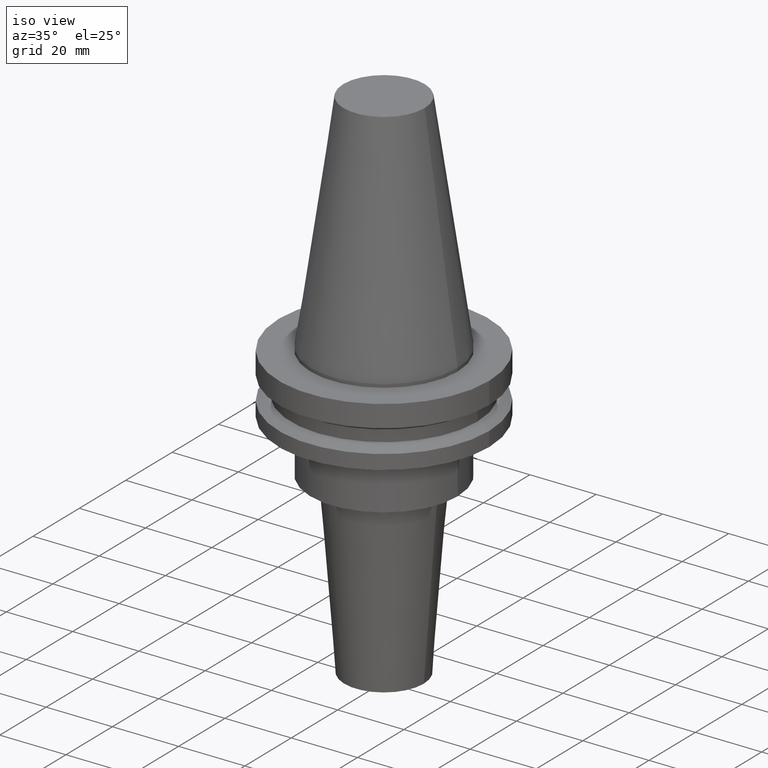
[diagram: clean part render]
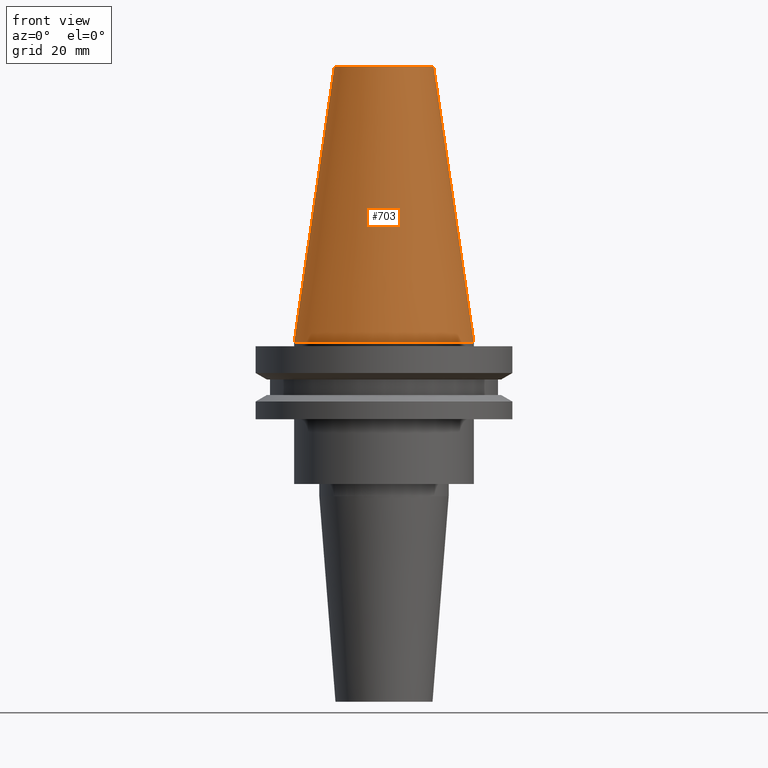
[diagram: tour spotlight — one face highlighted and labeled with its STEP entity id]
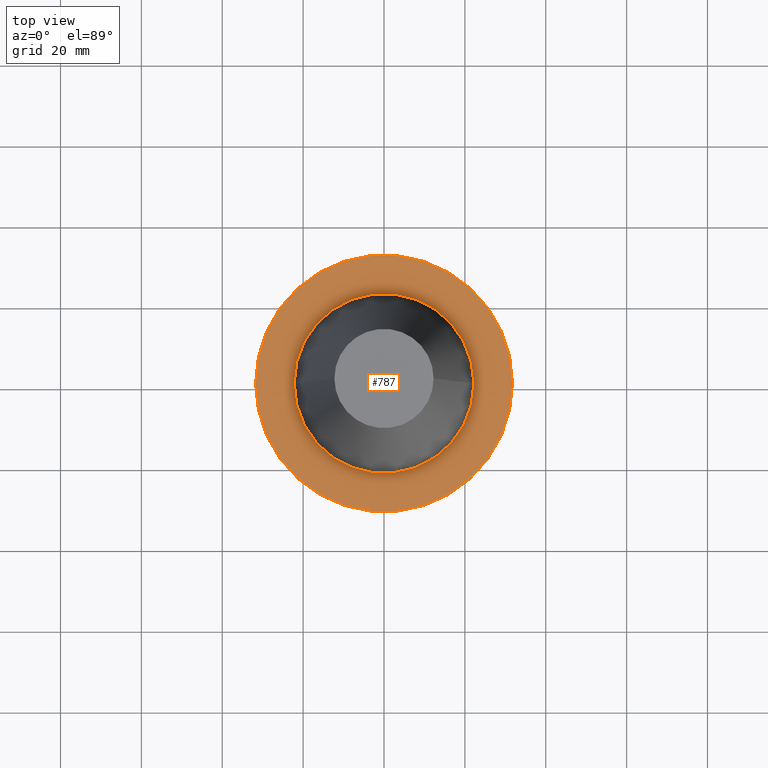
[diagram: tour spotlight — one face highlighted and labeled with its STEP entity id]
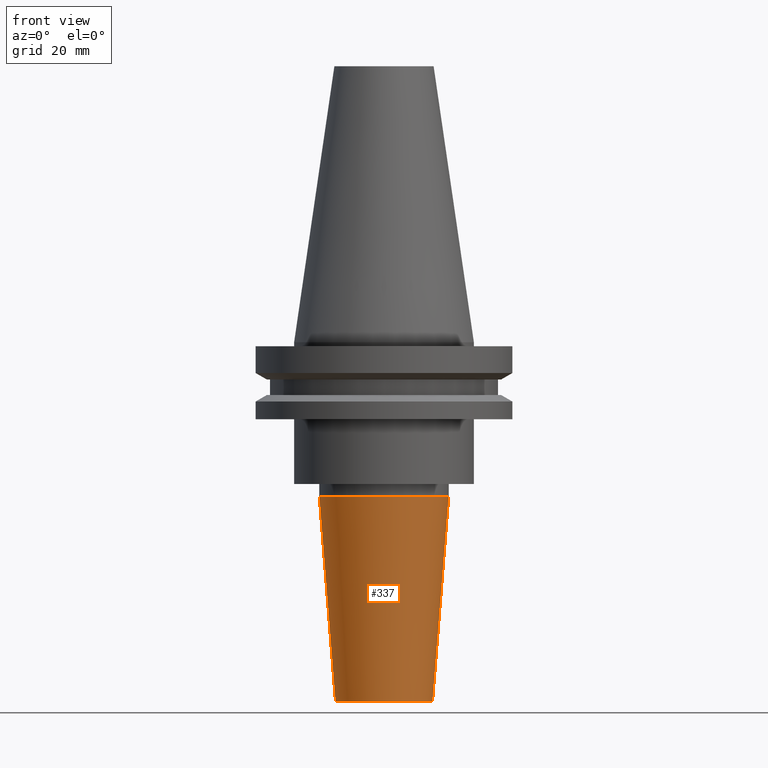
[diagram: tour spotlight — one face highlighted and labeled with its STEP entity id]
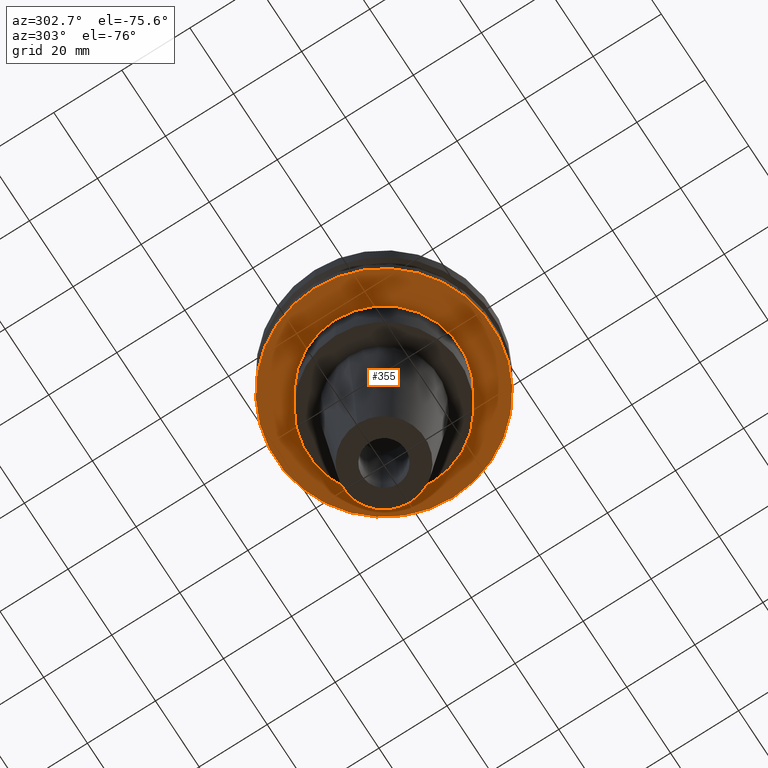
[diagram: tour spotlight — one face highlighted and labeled with its STEP entity id]
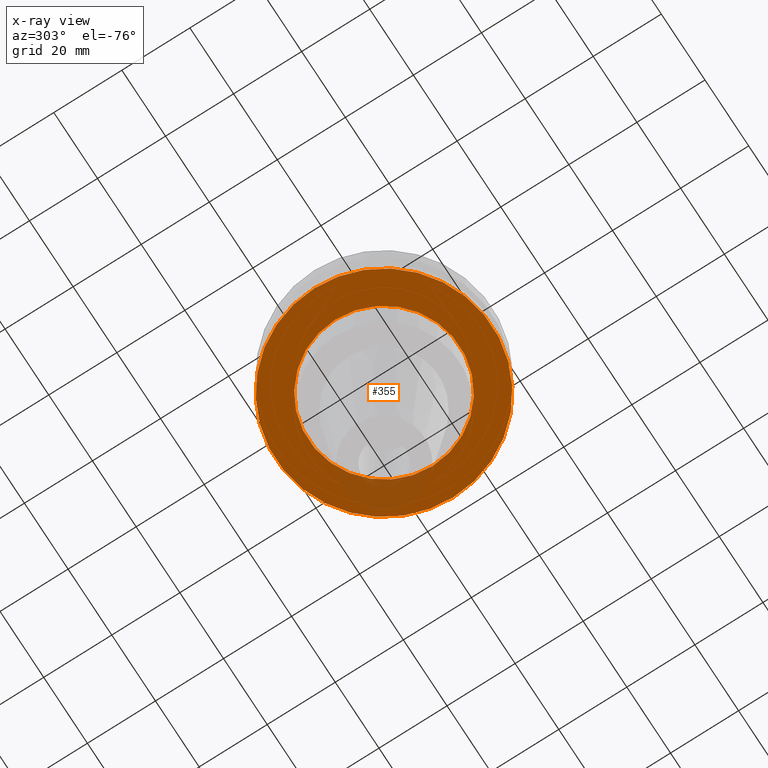
[diagram: x-ray of the same camera — body ghosted, this tour face saturated]
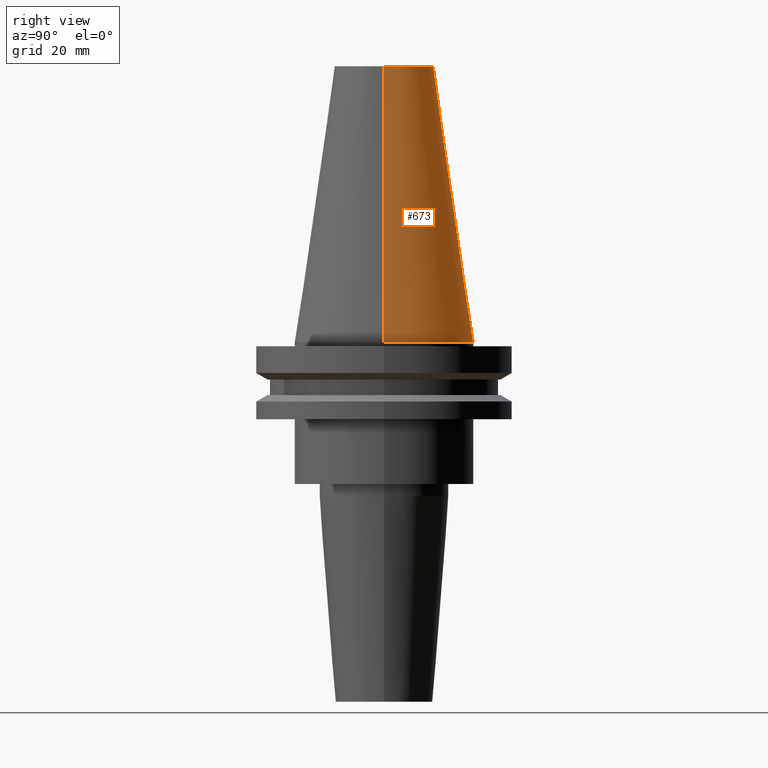
[diagram: tour spotlight — one face highlighted and labeled with its STEP entity id]
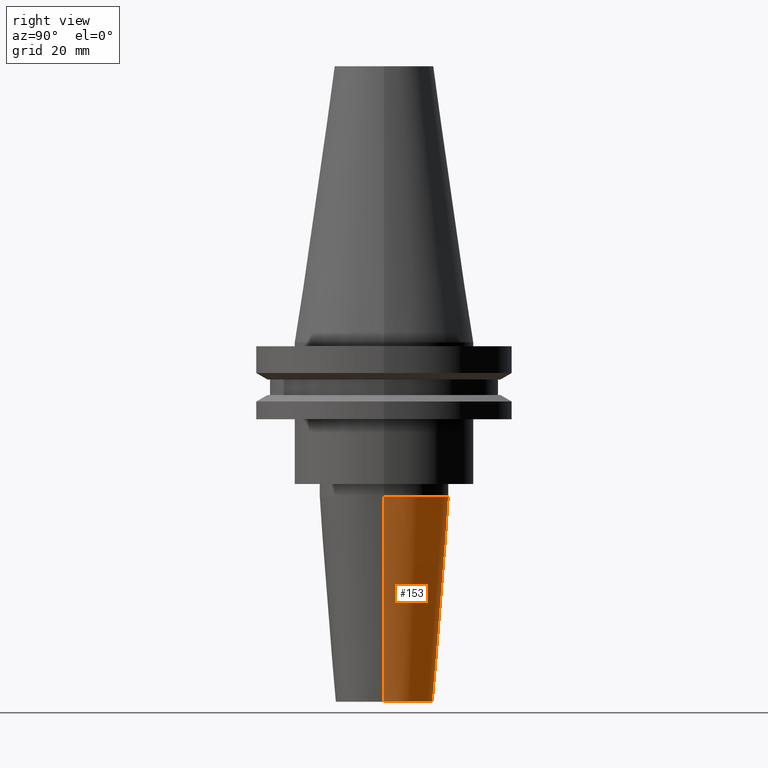
[diagram: tour spotlight — one face highlighted and labeled with its STEP entity id]
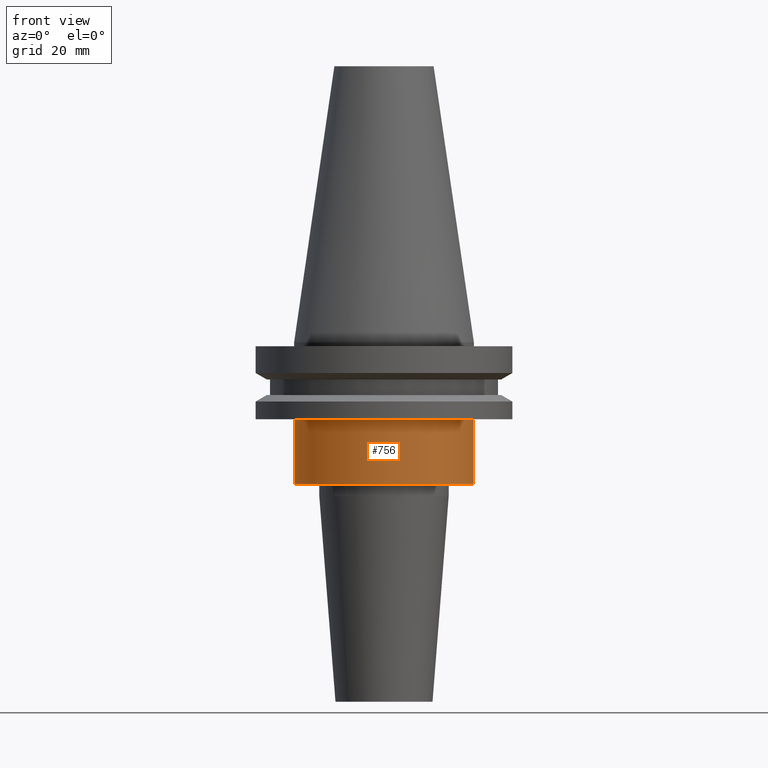
[diagram: tour spotlight — one face highlighted and labeled with its STEP entity id]
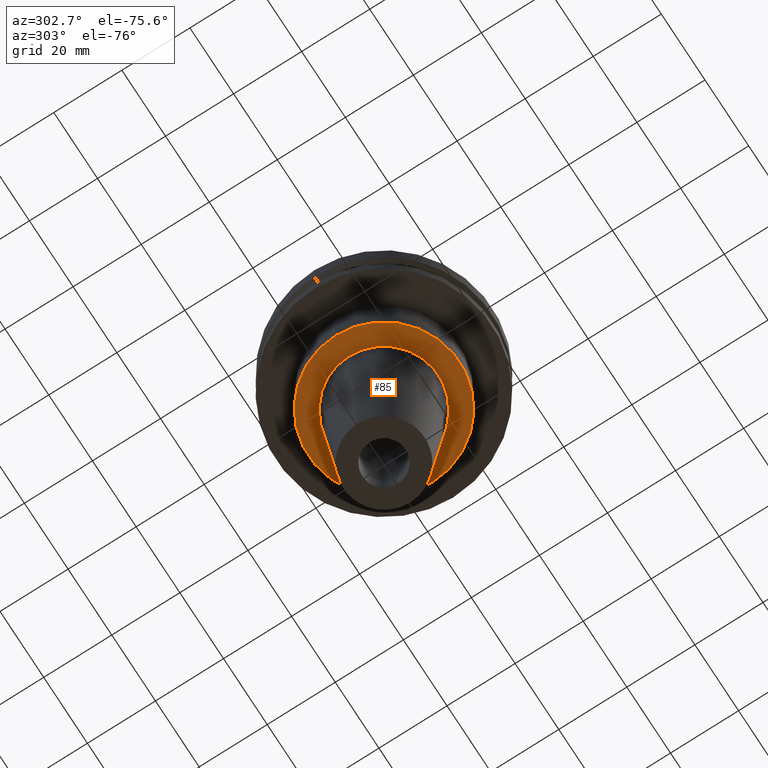
[diagram: tour spotlight — one face highlighted and labeled with its STEP entity id]
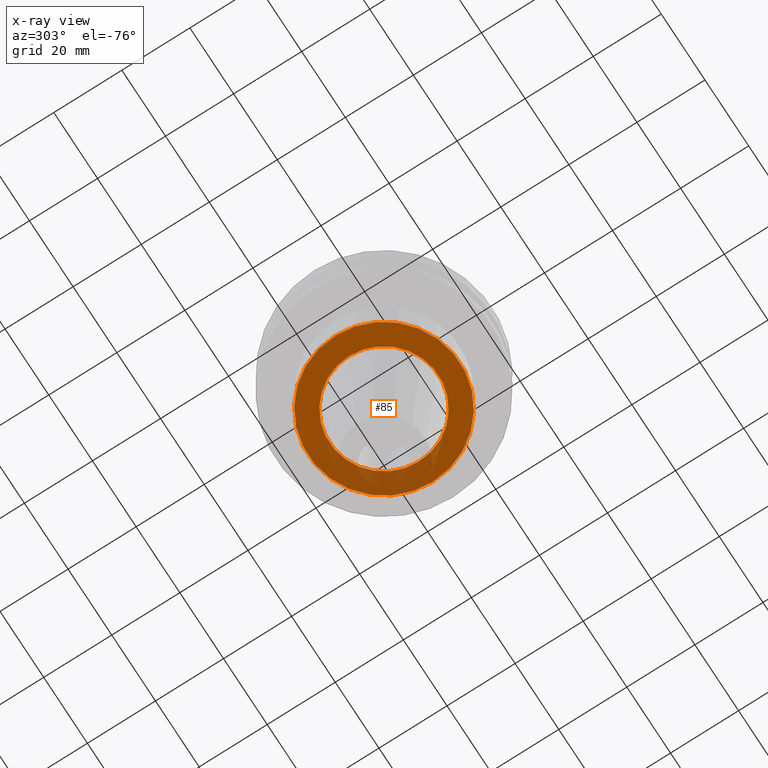
[diagram: x-ray of the same camera — body ghosted, this tour face saturated]
A machine part: a face-by-face anatomy tour. The part has 30 B-rep faces; the first image is the clean iso view, then the 8 largest visible faces are spotlighted one at a time (largest first), each with its STEP entity span.

Face 1 — front view, entity #703. In plain terms, the highlighted conical surface has half-angle 8.297 deg.
Definition (entity closure, byte-faithful):
#14 = EDGE_CURVE ( 'NONE', #243, #396, #55, .T. ) ;
#20 = VERTEX_POINT ( 'NONE', #179 ) ;
#39 = EDGE_CURVE ( 'NONE', #569, #396, #223, .T. ) ;
#42 = CIRCLE ( 'NONE', #107, 12.27178102086201150 ) ;
#51 = CARTESIAN_POINT ( 'NONE',  ( 22.22500000000000142, 2.721777511104992849E-15, 0.000000000000000000 ) ) ;
#55 = LINE ( 'NONE', #51, #595 ) ;
#82 = CARTESIAN_POINT ( 'NONE',  ( 12.27178102086201150, 2.112318622904291439E-15, 68.25000000000000000 ) ) ;
#90 = ORIENTED_EDGE ( 'NONE', *, *, #166, .T. ) ;
#107 = AXIS2_PLACEMENT_3D ( 'NONE', #483, #821, #562 ) ;
#146 = ORIENTED_EDGE ( 'NONE', *, *, #39, .T. ) ;
#166 = EDGE_CURVE ( 'NONE', #20, #569, #853, .T. ) ;
#178 = VECTOR ( 'NONE', #392, 999.9999999999998863 ) ;
#179 = CARTESIAN_POINT ( 'NONE',  ( -12.27178102086201150, 0.000000000000000000, 68.25000000000000000 ) ) ;
#192 = EDGE_CURVE ( 'NONE', #20, #243, #42, .T. ) ;
#193 = DIRECTION ( 'NONE',  ( 1.000000000000000000, 0.000000000000000000, 0.000000000000000000 ) ) ;
#209 = FACE_OUTER_BOUND ( 'NONE', #745, .T. ) ;
#223 = CIRCLE ( 'NONE', #771, 22.22500000000000142 ) ;
#242 = CARTESIAN_POINT ( 'NONE',  ( 0.000000000000000000, 0.000000000000000000, 0.000000000000000000 ) ) ;
#243 = VERTEX_POINT ( 'NONE', #82 ) ;
#244 = CONICAL_SURFACE ( 'NONE', #573, 22.22500000000000142, 0.1448138465474119174 ) ;
#324 = ORIENTED_EDGE ( 'NONE', *, *, #192, .F. ) ;
#336 = DIRECTION ( 'NONE',  ( -1.000000000000000000, 0.000000000000000000, 0.000000000000000000 ) ) ;
#392 = DIRECTION ( 'NONE',  ( -0.1443082272672999711, 0.000000000000000000, -0.9895327864921755756 ) ) ;
#396 = VERTEX_POINT ( 'NONE', #502 ) ;
#483 = CARTESIAN_POINT ( 'NONE',  ( 0.000000000000000000, 0.000000000000000000, 68.25000000000000000 ) ) ;
#502 = CARTESIAN_POINT ( 'NONE',  ( 22.22500000000000142, 2.721777511104992849E-15, 0.000000000000000000 ) ) ;
#503 = DIRECTION ( 'NONE',  ( -0.000000000000000000, -0.000000000000000000, 1.000000000000000000 ) ) ;
#562 = DIRECTION ( 'NONE',  ( 1.000000000000000000, 0.000000000000000000, 0.000000000000000000 ) ) ;
#569 = VERTEX_POINT ( 'NONE', #587 ) ;
#573 = AXIS2_PLACEMENT_3D ( 'NONE', #806, #677, #336 ) ;
#587 = CARTESIAN_POINT ( 'NONE',  ( -22.22500000000000142, 0.000000000000000000, 0.000000000000000000 ) ) ;
#595 = VECTOR ( 'NONE', #838, 999.9999999999998863 ) ;
#677 = DIRECTION ( 'NONE',  ( 0.000000000000000000, 0.000000000000000000, -1.000000000000000000 ) ) ;
#703 = ADVANCED_FACE ( 'NONE', ( #209 ), #244, .T. ) ;
#745 = EDGE_LOOP ( 'NONE', ( #757, #324, #90, #146 ) ) ;
#757 = ORIENTED_EDGE ( 'NONE', *, *, #14, .F. ) ;
#771 = AXIS2_PLACEMENT_3D ( 'NONE', #242, #503, #193 ) ;
#786 = CARTESIAN_POINT ( 'NONE',  ( -22.22500000000000142, 0.000000000000000000, 0.000000000000000000 ) ) ;
#806 = CARTESIAN_POINT ( 'NONE',  ( 0.000000000000000000, 0.000000000000000000, 0.000000000000000000 ) ) ;
#821 = DIRECTION ( 'NONE',  ( -0.000000000000000000, -0.000000000000000000, 1.000000000000000000 ) ) ;
#838 = DIRECTION ( 'NONE',  ( 0.1443082272672999711, 1.767266086135276757E-17, -0.9895327864921755756 ) ) ;
#853 = LINE ( 'NONE', #786, #178 ) ;

Face 2 — top view, entity #787. In plain terms, the highlighted planar face has unit normal (0, 0, -1).
Definition (entity closure, byte-faithful):
#25 = VERTEX_POINT ( 'NONE', #770 ) ;
#41 = DIRECTION ( 'NONE',  ( 1.000000000000000000, 0.000000000000000000, 0.000000000000000000 ) ) ;
#52 = EDGE_LOOP ( 'NONE', ( #720, #753 ) ) ;
#68 = CARTESIAN_POINT ( 'NONE',  ( 0.000000000000000000, 0.000000000000000000, -1.000000000000000888 ) ) ;
#101 = EDGE_CURVE ( 'NONE', #167, #357, #763, .T. ) ;
#128 = CARTESIAN_POINT ( 'NONE',  ( 0.000000000000000000, 0.000000000000000000, -1.000000000000000888 ) ) ;
#135 = VERTEX_POINT ( 'NONE', #631 ) ;
#151 = CIRCLE ( 'NONE', #723, 31.75000000000000000 ) ;
#167 = VERTEX_POINT ( 'NONE', #455 ) ;
#181 = DIRECTION ( 'NONE',  ( -0.000000000000000000, -0.000000000000000000, 1.000000000000000000 ) ) ;
#219 = DIRECTION ( 'NONE',  ( -1.000000000000000000, 0.000000000000000000, -0.000000000000000000 ) ) ;
#268 = EDGE_CURVE ( 'NONE', #357, #167, #389, .T. ) ;
#286 = FACE_BOUND ( 'NONE', #289, .T. ) ;
#289 = EDGE_LOOP ( 'NONE', ( #580, #793 ) ) ;
#301 = AXIS2_PLACEMENT_3D ( 'NONE', #810, #480, #219 ) ;
#313 = DIRECTION ( 'NONE',  ( -0.000000000000000000, -0.000000000000000000, 1.000000000000000000 ) ) ;
#357 = VERTEX_POINT ( 'NONE', #429 ) ;
#379 = DIRECTION ( 'NONE',  ( 1.000000000000000000, 0.000000000000000000, 0.000000000000000000 ) ) ;
#383 = CARTESIAN_POINT ( 'NONE',  ( 0.000000000000000000, 0.000000000000000000, -1.000000000000000888 ) ) ;
#389 = CIRCLE ( 'NONE', #676, 22.22500000000000142 ) ;
#407 = DIRECTION ( 'NONE',  ( -0.000000000000000000, -0.000000000000000000, 1.000000000000000000 ) ) ;
#429 = CARTESIAN_POINT ( 'NONE',  ( -22.22500000000000142, 2.721777511104992849E-15, -1.000000000000000888 ) ) ;
#449 = AXIS2_PLACEMENT_3D ( 'NONE', #383, #181, #511 ) ;
#455 = CARTESIAN_POINT ( 'NONE',  ( 22.22500000000000142, 0.000000000000000000, -1.000000000000000888 ) ) ;
#468 = EDGE_CURVE ( 'NONE', #25, #135, #151, .T. ) ;
#476 = CIRCLE ( 'NONE', #449, 31.75000000000000000 ) ;
#480 = DIRECTION ( 'NONE',  ( 0.000000000000000000, 0.000000000000000000, -1.000000000000000000 ) ) ;
#511 = DIRECTION ( 'NONE',  ( 1.000000000000000000, 0.000000000000000000, 0.000000000000000000 ) ) ;
#544 = PLANE ( 'NONE',  #301 ) ;
#546 = DIRECTION ( 'NONE',  ( 1.000000000000000000, 0.000000000000000000, 0.000000000000000000 ) ) ;
#568 = EDGE_CURVE ( 'NONE', #135, #25, #476, .T. ) ;
#580 = ORIENTED_EDGE ( 'NONE', *, *, #101, .F. ) ;
#588 = AXIS2_PLACEMENT_3D ( 'NONE', #128, #313, #379 ) ;
#614 = DIRECTION ( 'NONE',  ( -0.000000000000000000, -0.000000000000000000, 1.000000000000000000 ) ) ;
#631 = CARTESIAN_POINT ( 'NONE',  ( -31.75000000000000000, 3.888253587292846476E-15, -1.000000000000000888 ) ) ;
#676 = AXIS2_PLACEMENT_3D ( 'NONE', #68, #407, #546 ) ;
#720 = ORIENTED_EDGE ( 'NONE', *, *, #468, .T. ) ;
#723 = AXIS2_PLACEMENT_3D ( 'NONE', #837, #614, #41 ) ;
#738 = FACE_OUTER_BOUND ( 'NONE', #52, .T. ) ;
#753 = ORIENTED_EDGE ( 'NONE', *, *, #568, .T. ) ;
#763 = CIRCLE ( 'NONE', #588, 22.22500000000000142 ) ;
#770 = CARTESIAN_POINT ( 'NONE',  ( 31.75000000000000000, 0.000000000000000000, -1.000000000000000888 ) ) ;
#787 = ADVANCED_FACE ( 'NONE', ( #286, #738 ), #544, .F. ) ;
#793 = ORIENTED_EDGE ( 'NONE', *, *, #268, .F. ) ;
#810 = CARTESIAN_POINT ( 'NONE',  ( 0.000000000000000000, 31.75000000000000000, -0.9999999999999995559 ) ) ;
#837 = CARTESIAN_POINT ( 'NONE',  ( 0.000000000000000000, 0.000000000000000000, -1.000000000000000888 ) ) ;

Face 3 — front view, entity #337. In plain terms, the highlighted conical surface has half-angle 4.5 deg.
Definition (entity closure, byte-faithful):
#26 = CIRCLE ( 'NONE', #190, 16.00000000000000000 ) ;
#69 = VERTEX_POINT ( 'NONE', #439 ) ;
#102 = AXIS2_PLACEMENT_3D ( 'NONE', #719, #807, #214 ) ;
#144 = DIRECTION ( 'NONE',  ( 1.000000000000000000, 0.000000000000000000, 0.000000000000000000 ) ) ;
#145 = CONICAL_SURFACE ( 'NONE', #102, 12.00000000000000000, 0.07853981633973657062 ) ;
#158 = DIRECTION ( 'NONE',  ( -0.000000000000000000, -0.000000000000000000, 1.000000000000000000 ) ) ;
#161 = CARTESIAN_POINT ( 'NONE',  ( 12.00000000000000000, 0.000000000000000000, -88.89999999999999147 ) ) ;
#190 = AXIS2_PLACEMENT_3D ( 'NONE', #391, #840, #525 ) ;
#214 = DIRECTION ( 'NONE',  ( 1.000000000000000000, 0.000000000000000000, 0.000000000000000000 ) ) ;
#236 = ORIENTED_EDGE ( 'NONE', *, *, #709, .T. ) ;
#241 = DIRECTION ( 'NONE',  ( -0.07845909572783671404, 9.608468044709101226E-18, 0.9969173337331286300 ) ) ;
#282 = VECTOR ( 'NONE', #304, 1000.000000000000000 ) ;
#284 = ORIENTED_EDGE ( 'NONE', *, *, #378, .F. ) ;
#304 = DIRECTION ( 'NONE',  ( 0.07845909572783671404, 0.000000000000000000, 0.9969173337331286300 ) ) ;
#337 = ADVANCED_FACE ( 'NONE', ( #541 ), #145, .T. ) ;
#344 = EDGE_CURVE ( 'NONE', #826, #805, #816, .T. ) ;
#362 = CARTESIAN_POINT ( 'NONE',  ( -12.00000000000000000, 1.469576158976823947E-15, -88.89999999999999147 ) ) ;
#378 = EDGE_CURVE ( 'NONE', #789, #69, #833, .T. ) ;
#391 = CARTESIAN_POINT ( 'NONE',  ( 0.000000000000000000, 0.000000000000000000, -38.07518105529580055 ) ) ;
#394 = AXIS2_PLACEMENT_3D ( 'NONE', #604, #158, #144 ) ;
#432 = CARTESIAN_POINT ( 'NONE',  ( 16.00000000000000000, 0.000000000000000000, -38.07518105529580055 ) ) ;
#439 = CARTESIAN_POINT ( 'NONE',  ( -16.00000000000000000, 1.959434878635765131E-15, -38.07518105529580055 ) ) ;
#473 = EDGE_LOOP ( 'NONE', ( #284, #236, #615, #576 ) ) ;
#504 = CIRCLE ( 'NONE', #394, 12.00000000000000000 ) ;
#525 = DIRECTION ( 'NONE',  ( 1.000000000000000000, 0.000000000000000000, 0.000000000000000000 ) ) ;
#541 = FACE_OUTER_BOUND ( 'NONE', #473, .T. ) ;
#576 = ORIENTED_EDGE ( 'NONE', *, *, #648, .F. ) ;
#604 = CARTESIAN_POINT ( 'NONE',  ( 0.000000000000000000, 0.000000000000000000, -88.89999999999999147 ) ) ;
#615 = ORIENTED_EDGE ( 'NONE', *, *, #344, .T. ) ;
#648 = EDGE_CURVE ( 'NONE', #69, #805, #26, .T. ) ;
#709 = EDGE_CURVE ( 'NONE', #789, #826, #504, .T. ) ;
#719 = CARTESIAN_POINT ( 'NONE',  ( 0.000000000000000000, 0.000000000000000000, -88.89999999999999147 ) ) ;
#742 = CARTESIAN_POINT ( 'NONE',  ( -12.00000000000000000, 1.714505518806294638E-15, -88.89999999999999147 ) ) ;
#755 = CARTESIAN_POINT ( 'NONE',  ( 12.00000000000000000, 0.000000000000000000, -88.89999999999999147 ) ) ;
#789 = VERTEX_POINT ( 'NONE', #742 ) ;
#805 = VERTEX_POINT ( 'NONE', #432 ) ;
#807 = DIRECTION ( 'NONE',  ( -0.000000000000000000, -0.000000000000000000, 1.000000000000000000 ) ) ;
#816 = LINE ( 'NONE', #755, #282 ) ;
#822 = VECTOR ( 'NONE', #241, 1000.000000000000000 ) ;
#826 = VERTEX_POINT ( 'NONE', #161 ) ;
#833 = LINE ( 'NONE', #362, #822 ) ;
#840 = DIRECTION ( 'NONE',  ( -0.000000000000000000, -0.000000000000000000, 1.000000000000000000 ) ) ;

Face 4 — auxiliary view, entity #355. An x-ray twin of the same camera follows (body ghosted, this face saturated) — the face is partly hidden behind the body. In plain terms, the highlighted planar face has unit normal (0, -0, 1).
Definition (entity closure, byte-faithful):
#45 = FACE_BOUND ( 'NONE', #535, .T. ) ;
#49 = CARTESIAN_POINT ( 'NONE',  ( -22.22500000000000142, 2.721777511104992849E-15, -19.04999999999999716 ) ) ;
#65 = CIRCLE ( 'NONE', #433, 22.22500000000000142 ) ;
#71 = DIRECTION ( 'NONE',  ( -0.000000000000000000, -0.000000000000000000, 1.000000000000000000 ) ) ;
#73 = DIRECTION ( 'NONE',  ( -0.000000000000000000, -0.000000000000000000, 1.000000000000000000 ) ) ;
#79 = ORIENTED_EDGE ( 'NONE', *, *, #552, .F. ) ;
#95 = EDGE_LOOP ( 'NONE', ( #79, #797 ) ) ;
#99 = CARTESIAN_POINT ( 'NONE',  ( 31.74999999999999289, 0.000000000000000000, -19.04999999999999716 ) ) ;
#112 = DIRECTION ( 'NONE',  ( 1.000000000000000000, 0.000000000000000000, 0.000000000000000000 ) ) ;
#130 = EDGE_CURVE ( 'NONE', #485, #448, #65, .T. ) ;
#175 = CIRCLE ( 'NONE', #381, 22.22500000000000142 ) ;
#180 = ORIENTED_EDGE ( 'NONE', *, *, #684, .T. ) ;
#215 = AXIS2_PLACEMENT_3D ( 'NONE', #395, #71, #333 ) ;
#308 = DIRECTION ( 'NONE',  ( 0.000000000000000000, -0.000000000000000000, 1.000000000000000000 ) ) ;
#330 = CARTESIAN_POINT ( 'NONE',  ( -31.74999999999999289, 3.888253587292845687E-15, -19.04999999999999716 ) ) ;
#333 = DIRECTION ( 'NONE',  ( 1.000000000000000000, 0.000000000000000000, 0.000000000000000000 ) ) ;
#348 = CARTESIAN_POINT ( 'NONE',  ( 0.000000000000000000, 0.000000000000000000, -19.04999999999999716 ) ) ;
#355 = ADVANCED_FACE ( 'NONE', ( #374, #45 ), #554, .F. ) ;
#371 = DIRECTION ( 'NONE',  ( 1.000000000000000000, 0.000000000000000000, 0.000000000000000000 ) ) ;
#374 = FACE_OUTER_BOUND ( 'NONE', #95, .T. ) ;
#381 = AXIS2_PLACEMENT_3D ( 'NONE', #348, #73, #404 ) ;
#395 = CARTESIAN_POINT ( 'NONE',  ( 0.000000000000000000, 0.000000000000000000, -19.04999999999999716 ) ) ;
#404 = DIRECTION ( 'NONE',  ( 1.000000000000000000, 0.000000000000000000, 0.000000000000000000 ) ) ;
#419 = CARTESIAN_POINT ( 'NONE',  ( 22.22500000000000142, 0.000000000000000000, -19.04999999999999716 ) ) ;
#433 = AXIS2_PLACEMENT_3D ( 'NONE', #761, #435, #371 ) ;
#435 = DIRECTION ( 'NONE',  ( -0.000000000000000000, -0.000000000000000000, 1.000000000000000000 ) ) ;
#448 = VERTEX_POINT ( 'NONE', #49 ) ;
#462 = CIRCLE ( 'NONE', #215, 31.74999999999999289 ) ;
#466 = AXIS2_PLACEMENT_3D ( 'NONE', #625, #308, #112 ) ;
#485 = VERTEX_POINT ( 'NONE', #419 ) ;
#493 = VERTEX_POINT ( 'NONE', #99 ) ;
#518 = AXIS2_PLACEMENT_3D ( 'NONE', #566, #624, #553 ) ;
#535 = EDGE_LOOP ( 'NONE', ( #627, #180 ) ) ;
#552 = EDGE_CURVE ( 'NONE', #493, #560, #462, .T. ) ;
#553 = DIRECTION ( 'NONE',  ( 1.000000000000000000, 0.000000000000000000, 0.000000000000000000 ) ) ;
#554 = PLANE ( 'NONE',  #466 ) ;
#559 = CIRCLE ( 'NONE', #518, 31.74999999999999289 ) ;
#560 = VERTEX_POINT ( 'NONE', #330 ) ;
#566 = CARTESIAN_POINT ( 'NONE',  ( 0.000000000000000000, 0.000000000000000000, -19.04999999999999716 ) ) ;
#624 = DIRECTION ( 'NONE',  ( -0.000000000000000000, -0.000000000000000000, 1.000000000000000000 ) ) ;
#625 = CARTESIAN_POINT ( 'NONE',  ( 0.000000000000000000, 31.74999999999999289, -19.04999999999999716 ) ) ;
#627 = ORIENTED_EDGE ( 'NONE', *, *, #130, .T. ) ;
#684 = EDGE_CURVE ( 'NONE', #448, #485, #175, .T. ) ;
#761 = CARTESIAN_POINT ( 'NONE',  ( 0.000000000000000000, 0.000000000000000000, -19.04999999999999716 ) ) ;
#797 = ORIENTED_EDGE ( 'NONE', *, *, #799, .F. ) ;
#799 = EDGE_CURVE ( 'NONE', #560, #493, #559, .T. ) ;

Face 5 — right view, entity #673. In plain terms, the highlighted conical surface has half-angle 8.297 deg.
Definition (entity closure, byte-faithful):
#10 = AXIS2_PLACEMENT_3D ( 'NONE', #340, #147, #203 ) ;
#14 = EDGE_CURVE ( 'NONE', #243, #396, #55, .T. ) ;
#20 = VERTEX_POINT ( 'NONE', #179 ) ;
#51 = CARTESIAN_POINT ( 'NONE',  ( 22.22500000000000142, 2.721777511104992849E-15, 0.000000000000000000 ) ) ;
#55 = LINE ( 'NONE', #51, #595 ) ;
#66 = EDGE_CURVE ( 'NONE', #396, #569, #842, .T. ) ;
#82 = CARTESIAN_POINT ( 'NONE',  ( 12.27178102086201150, 2.112318622904291439E-15, 68.25000000000000000 ) ) ;
#147 = DIRECTION ( 'NONE',  ( 0.000000000000000000, 0.000000000000000000, -1.000000000000000000 ) ) ;
#166 = EDGE_CURVE ( 'NONE', #20, #569, #853, .T. ) ;
#178 = VECTOR ( 'NONE', #392, 999.9999999999998863 ) ;
#179 = CARTESIAN_POINT ( 'NONE',  ( -12.27178102086201150, 0.000000000000000000, 68.25000000000000000 ) ) ;
#199 = EDGE_LOOP ( 'NONE', ( #706, #666, #690, #632 ) ) ;
#203 = DIRECTION ( 'NONE',  ( -1.000000000000000000, 0.000000000000000000, 0.000000000000000000 ) ) ;
#243 = VERTEX_POINT ( 'NONE', #82 ) ;
#339 = EDGE_CURVE ( 'NONE', #243, #20, #846, .T. ) ;
#340 = CARTESIAN_POINT ( 'NONE',  ( 0.000000000000000000, 0.000000000000000000, 0.000000000000000000 ) ) ;
#384 = DIRECTION ( 'NONE',  ( 1.000000000000000000, 0.000000000000000000, 0.000000000000000000 ) ) ;
#392 = DIRECTION ( 'NONE',  ( -0.1443082272672999711, 0.000000000000000000, -0.9895327864921755756 ) ) ;
#396 = VERTEX_POINT ( 'NONE', #502 ) ;
#502 = CARTESIAN_POINT ( 'NONE',  ( 22.22500000000000142, 2.721777511104992849E-15, 0.000000000000000000 ) ) ;
#569 = VERTEX_POINT ( 'NONE', #587 ) ;
#587 = CARTESIAN_POINT ( 'NONE',  ( -22.22500000000000142, 0.000000000000000000, 0.000000000000000000 ) ) ;
#595 = VECTOR ( 'NONE', #838, 999.9999999999998863 ) ;
#632 = ORIENTED_EDGE ( 'NONE', *, *, #166, .F. ) ;
#651 = AXIS2_PLACEMENT_3D ( 'NONE', #740, #811, #678 ) ;
#666 = ORIENTED_EDGE ( 'NONE', *, *, #14, .T. ) ;
#673 = ADVANCED_FACE ( 'NONE', ( #725 ), #852, .T. ) ;
#678 = DIRECTION ( 'NONE',  ( 1.000000000000000000, 0.000000000000000000, 0.000000000000000000 ) ) ;
#690 = ORIENTED_EDGE ( 'NONE', *, *, #66, .T. ) ;
#706 = ORIENTED_EDGE ( 'NONE', *, *, #339, .F. ) ;
#710 = CARTESIAN_POINT ( 'NONE',  ( 0.000000000000000000, 0.000000000000000000, 0.000000000000000000 ) ) ;
#725 = FACE_OUTER_BOUND ( 'NONE', #199, .T. ) ;
#740 = CARTESIAN_POINT ( 'NONE',  ( 0.000000000000000000, 0.000000000000000000, 68.25000000000000000 ) ) ;
#767 = DIRECTION ( 'NONE',  ( -0.000000000000000000, -0.000000000000000000, 1.000000000000000000 ) ) ;
#786 = CARTESIAN_POINT ( 'NONE',  ( -22.22500000000000142, 0.000000000000000000, 0.000000000000000000 ) ) ;
#811 = DIRECTION ( 'NONE',  ( -0.000000000000000000, -0.000000000000000000, 1.000000000000000000 ) ) ;
#815 = AXIS2_PLACEMENT_3D ( 'NONE', #710, #767, #384 ) ;
#838 = DIRECTION ( 'NONE',  ( 0.1443082272672999711, 1.767266086135276757E-17, -0.9895327864921755756 ) ) ;
#842 = CIRCLE ( 'NONE', #815, 22.22500000000000142 ) ;
#846 = CIRCLE ( 'NONE', #651, 12.27178102086201150 ) ;
#852 = CONICAL_SURFACE ( 'NONE', #10, 22.22500000000000142, 0.1448138465474119174 ) ;
#853 = LINE ( 'NONE', #786, #178 ) ;

Face 6 — right view, entity #153. In plain terms, the highlighted conical surface has half-angle 4.5 deg.
Definition (entity closure, byte-faithful):
#6 = ORIENTED_EDGE ( 'NONE', *, *, #629, .T. ) ;
#69 = VERTEX_POINT ( 'NONE', #439 ) ;
#103 = DIRECTION ( 'NONE',  ( -0.000000000000000000, -0.000000000000000000, 1.000000000000000000 ) ) ;
#116 = CARTESIAN_POINT ( 'NONE',  ( 0.000000000000000000, 0.000000000000000000, -88.89999999999999147 ) ) ;
#133 = DIRECTION ( 'NONE',  ( -0.000000000000000000, -0.000000000000000000, 1.000000000000000000 ) ) ;
#153 = ADVANCED_FACE ( 'NONE', ( #197 ), #218, .T. ) ;
#161 = CARTESIAN_POINT ( 'NONE',  ( 12.00000000000000000, 0.000000000000000000, -88.89999999999999147 ) ) ;
#197 = FACE_OUTER_BOUND ( 'NONE', #453, .T. ) ;
#218 = CONICAL_SURFACE ( 'NONE', #423, 12.00000000000000000, 0.07853981633973657062 ) ;
#240 = DIRECTION ( 'NONE',  ( 1.000000000000000000, 0.000000000000000000, 0.000000000000000000 ) ) ;
#241 = DIRECTION ( 'NONE',  ( -0.07845909572783671404, 9.608468044709101226E-18, 0.9969173337331286300 ) ) ;
#245 = AXIS2_PLACEMENT_3D ( 'NONE', #563, #103, #240 ) ;
#264 = CARTESIAN_POINT ( 'NONE',  ( 0.000000000000000000, 0.000000000000000000, -88.89999999999999147 ) ) ;
#271 = DIRECTION ( 'NONE',  ( -0.000000000000000000, -0.000000000000000000, 1.000000000000000000 ) ) ;
#274 = AXIS2_PLACEMENT_3D ( 'NONE', #116, #271, #454 ) ;
#282 = VECTOR ( 'NONE', #304, 1000.000000000000000 ) ;
#304 = DIRECTION ( 'NONE',  ( 0.07845909572783671404, 0.000000000000000000, 0.9969173337331286300 ) ) ;
#319 = ORIENTED_EDGE ( 'NONE', *, *, #378, .T. ) ;
#344 = EDGE_CURVE ( 'NONE', #826, #805, #816, .T. ) ;
#354 = CIRCLE ( 'NONE', #274, 12.00000000000000000 ) ;
#362 = CARTESIAN_POINT ( 'NONE',  ( -12.00000000000000000, 1.469576158976823947E-15, -88.89999999999999147 ) ) ;
#378 = EDGE_CURVE ( 'NONE', #789, #69, #833, .T. ) ;
#385 = ORIENTED_EDGE ( 'NONE', *, *, #814, .F. ) ;
#423 = AXIS2_PLACEMENT_3D ( 'NONE', #264, #133, #522 ) ;
#432 = CARTESIAN_POINT ( 'NONE',  ( 16.00000000000000000, 0.000000000000000000, -38.07518105529580055 ) ) ;
#439 = CARTESIAN_POINT ( 'NONE',  ( -16.00000000000000000, 1.959434878635765131E-15, -38.07518105529580055 ) ) ;
#453 = EDGE_LOOP ( 'NONE', ( #6, #319, #385, #784 ) ) ;
#454 = DIRECTION ( 'NONE',  ( 1.000000000000000000, 0.000000000000000000, 0.000000000000000000 ) ) ;
#522 = DIRECTION ( 'NONE',  ( 1.000000000000000000, 0.000000000000000000, 0.000000000000000000 ) ) ;
#563 = CARTESIAN_POINT ( 'NONE',  ( 0.000000000000000000, 0.000000000000000000, -38.07518105529580055 ) ) ;
#600 = CIRCLE ( 'NONE', #245, 16.00000000000000000 ) ;
#629 = EDGE_CURVE ( 'NONE', #826, #789, #354, .T. ) ;
#742 = CARTESIAN_POINT ( 'NONE',  ( -12.00000000000000000, 1.714505518806294638E-15, -88.89999999999999147 ) ) ;
#755 = CARTESIAN_POINT ( 'NONE',  ( 12.00000000000000000, 0.000000000000000000, -88.89999999999999147 ) ) ;
#784 = ORIENTED_EDGE ( 'NONE', *, *, #344, .F. ) ;
#789 = VERTEX_POINT ( 'NONE', #742 ) ;
#805 = VERTEX_POINT ( 'NONE', #432 ) ;
#814 = EDGE_CURVE ( 'NONE', #805, #69, #600, .T. ) ;
#816 = LINE ( 'NONE', #755, #282 ) ;
#822 = VECTOR ( 'NONE', #241, 1000.000000000000000 ) ;
#826 = VERTEX_POINT ( 'NONE', #161 ) ;
#833 = LINE ( 'NONE', #362, #822 ) ;

Face 7 — front view, entity #756. In plain terms, the highlighted cylindrical surface (partial cylindrical patch) has radius 22.225 mm, axis along (-0, -0, 1).
Definition (entity closure, byte-faithful):
#15 = CARTESIAN_POINT ( 'NONE',  ( 0.000000000000000000, 0.000000000000000000, 68.25000000000000000 ) ) ;
#36 = DIRECTION ( 'NONE',  ( 1.000000000000000000, 0.000000000000000000, 0.000000000000000000 ) ) ;
#49 = CARTESIAN_POINT ( 'NONE',  ( -22.22500000000000142, 2.721777511104992849E-15, -19.04999999999999716 ) ) ;
#73 = DIRECTION ( 'NONE',  ( -0.000000000000000000, -0.000000000000000000, 1.000000000000000000 ) ) ;
#91 = AXIS2_PLACEMENT_3D ( 'NONE', #15, #278, #536 ) ;
#159 = LINE ( 'NONE', #477, #416 ) ;
#175 = CIRCLE ( 'NONE', #381, 22.22500000000000142 ) ;
#189 = ORIENTED_EDGE ( 'NONE', *, *, #684, .F. ) ;
#221 = ORIENTED_EDGE ( 'NONE', *, *, #281, .F. ) ;
#278 = DIRECTION ( 'NONE',  ( -0.000000000000000000, -0.000000000000000000, 1.000000000000000000 ) ) ;
#281 = EDGE_CURVE ( 'NONE', #292, #448, #159, .T. ) ;
#292 = VERTEX_POINT ( 'NONE', #471 ) ;
#295 = CARTESIAN_POINT ( 'NONE',  ( 0.000000000000000000, 0.000000000000000000, -35.04999999999999716 ) ) ;
#305 = ORIENTED_EDGE ( 'NONE', *, *, #642, .T. ) ;
#348 = CARTESIAN_POINT ( 'NONE',  ( 0.000000000000000000, 0.000000000000000000, -19.04999999999999716 ) ) ;
#367 = AXIS2_PLACEMENT_3D ( 'NONE', #295, #769, #36 ) ;
#381 = AXIS2_PLACEMENT_3D ( 'NONE', #348, #73, #404 ) ;
#404 = DIRECTION ( 'NONE',  ( 1.000000000000000000, 0.000000000000000000, 0.000000000000000000 ) ) ;
#416 = VECTOR ( 'NONE', #671, 1000.000000000000000 ) ;
#419 = CARTESIAN_POINT ( 'NONE',  ( 22.22500000000000142, 0.000000000000000000, -19.04999999999999716 ) ) ;
#446 = CARTESIAN_POINT ( 'NONE',  ( 22.22500000000000142, 0.000000000000000000, 68.25000000000000000 ) ) ;
#448 = VERTEX_POINT ( 'NONE', #49 ) ;
#458 = EDGE_CURVE ( 'NONE', #292, #663, #531, .T. ) ;
#471 = CARTESIAN_POINT ( 'NONE',  ( -22.22499999999999787, 2.721777511104992454E-15, -35.04999999999999716 ) ) ;
#477 = CARTESIAN_POINT ( 'NONE',  ( -22.22500000000000142, 2.721777511104992849E-15, 68.25000000000000000 ) ) ;
#485 = VERTEX_POINT ( 'NONE', #419 ) ;
#531 = CIRCLE ( 'NONE', #367, 22.22499999999999787 ) ;
#534 = CYLINDRICAL_SURFACE ( 'NONE', #91, 22.22500000000000142 ) ;
#536 = DIRECTION ( 'NONE',  ( 1.000000000000000000, 0.000000000000000000, 0.000000000000000000 ) ) ;
#558 = VECTOR ( 'NONE', #578, 1000.000000000000000 ) ;
#578 = DIRECTION ( 'NONE',  ( -0.000000000000000000, -0.000000000000000000, 1.000000000000000000 ) ) ;
#601 = FACE_OUTER_BOUND ( 'NONE', #602, .T. ) ;
#602 = EDGE_LOOP ( 'NONE', ( #221, #817, #305, #189 ) ) ;
#637 = LINE ( 'NONE', #446, #558 ) ;
#642 = EDGE_CURVE ( 'NONE', #663, #485, #637, .T. ) ;
#663 = VERTEX_POINT ( 'NONE', #851 ) ;
#671 = DIRECTION ( 'NONE',  ( -0.000000000000000000, -0.000000000000000000, 1.000000000000000000 ) ) ;
#684 = EDGE_CURVE ( 'NONE', #448, #485, #175, .T. ) ;
#756 = ADVANCED_FACE ( 'NONE', ( #601 ), #534, .T. ) ;
#769 = DIRECTION ( 'NONE',  ( -0.000000000000000000, -0.000000000000000000, 1.000000000000000000 ) ) ;
#817 = ORIENTED_EDGE ( 'NONE', *, *, #458, .T. ) ;
#851 = CARTESIAN_POINT ( 'NONE',  ( 22.22499999999999787, 0.000000000000000000, -35.04999999999999716 ) ) ;

Face 8 — auxiliary view, entity #85. An x-ray twin of the same camera follows (body ghosted, this face saturated) — the face is partly hidden behind the body. In plain terms, the highlighted planar face has unit normal (0, -0, 1).
Definition (entity closure, byte-faithful):
#36 = DIRECTION ( 'NONE',  ( 1.000000000000000000, 0.000000000000000000, 0.000000000000000000 ) ) ;
#40 = CARTESIAN_POINT ( 'NONE',  ( 0.000000000000000000, 0.000000000000000000, -35.04999999999999716 ) ) ;
#85 = ADVANCED_FACE ( 'NONE', ( #512, #447 ), #123, .F. ) ;
#108 = CARTESIAN_POINT ( 'NONE',  ( 0.000000000000000000, 22.22499999999999787, -35.04999999999999716 ) ) ;
#111 = EDGE_CURVE ( 'NONE', #663, #292, #623, .T. ) ;
#118 = VERTEX_POINT ( 'NONE', #640 ) ;
#122 = EDGE_CURVE ( 'NONE', #513, #118, #734, .T. ) ;
#123 = PLANE ( 'NONE',  #790 ) ;
#169 = CARTESIAN_POINT ( 'NONE',  ( -16.00000000000000000, 1.959434878635765131E-15, -35.04999999999999716 ) ) ;
#182 = DIRECTION ( 'NONE',  ( 0.000000000000000000, -0.000000000000000000, 1.000000000000000000 ) ) ;
#212 = ORIENTED_EDGE ( 'NONE', *, *, #824, .T. ) ;
#217 = EDGE_LOOP ( 'NONE', ( #400, #608 ) ) ;
#255 = DIRECTION ( 'NONE',  ( -0.000000000000000000, -0.000000000000000000, 1.000000000000000000 ) ) ;
#260 = DIRECTION ( 'NONE',  ( 1.000000000000000000, 0.000000000000000000, 0.000000000000000000 ) ) ;
#261 = AXIS2_PLACEMENT_3D ( 'NONE', #841, #387, #650 ) ;
#292 = VERTEX_POINT ( 'NONE', #471 ) ;
#295 = CARTESIAN_POINT ( 'NONE',  ( 0.000000000000000000, 0.000000000000000000, -35.04999999999999716 ) ) ;
#367 = AXIS2_PLACEMENT_3D ( 'NONE', #295, #769, #36 ) ;
#375 = CARTESIAN_POINT ( 'NONE',  ( 0.000000000000000000, 0.000000000000000000, -35.04999999999999716 ) ) ;
#387 = DIRECTION ( 'NONE',  ( -0.000000000000000000, -0.000000000000000000, 1.000000000000000000 ) ) ;
#400 = ORIENTED_EDGE ( 'NONE', *, *, #111, .F. ) ;
#447 = FACE_OUTER_BOUND ( 'NONE', #217, .T. ) ;
#458 = EDGE_CURVE ( 'NONE', #292, #663, #531, .T. ) ;
#471 = CARTESIAN_POINT ( 'NONE',  ( -22.22499999999999787, 2.721777511104992454E-15, -35.04999999999999716 ) ) ;
#500 = DIRECTION ( 'NONE',  ( 1.000000000000000000, 0.000000000000000000, 0.000000000000000000 ) ) ;
#501 = AXIS2_PLACEMENT_3D ( 'NONE', #375, #255, #635 ) ;
#512 = FACE_BOUND ( 'NONE', #736, .T. ) ;
#513 = VERTEX_POINT ( 'NONE', #169 ) ;
#527 = ORIENTED_EDGE ( 'NONE', *, *, #122, .T. ) ;
#531 = CIRCLE ( 'NONE', #367, 22.22499999999999787 ) ;
#608 = ORIENTED_EDGE ( 'NONE', *, *, #458, .F. ) ;
#618 = DIRECTION ( 'NONE',  ( -0.000000000000000000, -0.000000000000000000, 1.000000000000000000 ) ) ;
#623 = CIRCLE ( 'NONE', #501, 22.22499999999999787 ) ;
#635 = DIRECTION ( 'NONE',  ( 1.000000000000000000, 0.000000000000000000, 0.000000000000000000 ) ) ;
#640 = CARTESIAN_POINT ( 'NONE',  ( 16.00000000000000000, 0.000000000000000000, -35.04999999999999716 ) ) ;
#650 = DIRECTION ( 'NONE',  ( 1.000000000000000000, 0.000000000000000000, 0.000000000000000000 ) ) ;
#663 = VERTEX_POINT ( 'NONE', #851 ) ;
#711 = CIRCLE ( 'NONE', #798, 16.00000000000000000 ) ;
#734 = CIRCLE ( 'NONE', #261, 16.00000000000000000 ) ;
#736 = EDGE_LOOP ( 'NONE', ( #212, #527 ) ) ;
#769 = DIRECTION ( 'NONE',  ( -0.000000000000000000, -0.000000000000000000, 1.000000000000000000 ) ) ;
#790 = AXIS2_PLACEMENT_3D ( 'NONE', #108, #182, #260 ) ;
#798 = AXIS2_PLACEMENT_3D ( 'NONE', #40, #618, #500 ) ;
#824 = EDGE_CURVE ( 'NONE', #118, #513, #711, .T. ) ;
#841 = CARTESIAN_POINT ( 'NONE',  ( 0.000000000000000000, 0.000000000000000000, -35.04999999999999716 ) ) ;
#851 = CARTESIAN_POINT ( 'NONE',  ( 22.22499999999999787, 0.000000000000000000, -35.04999999999999716 ) ) ;